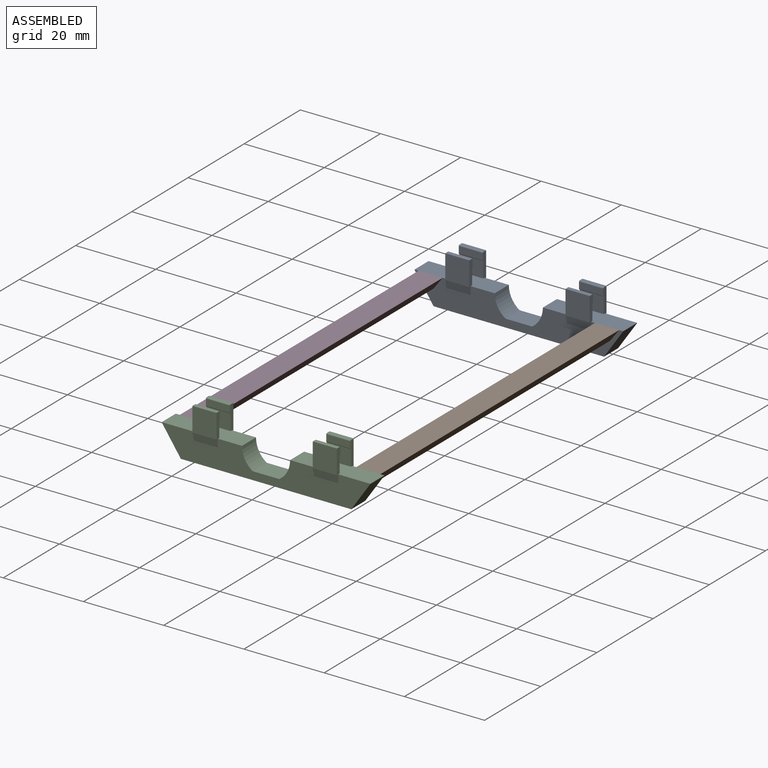
[diagram: assembled view]
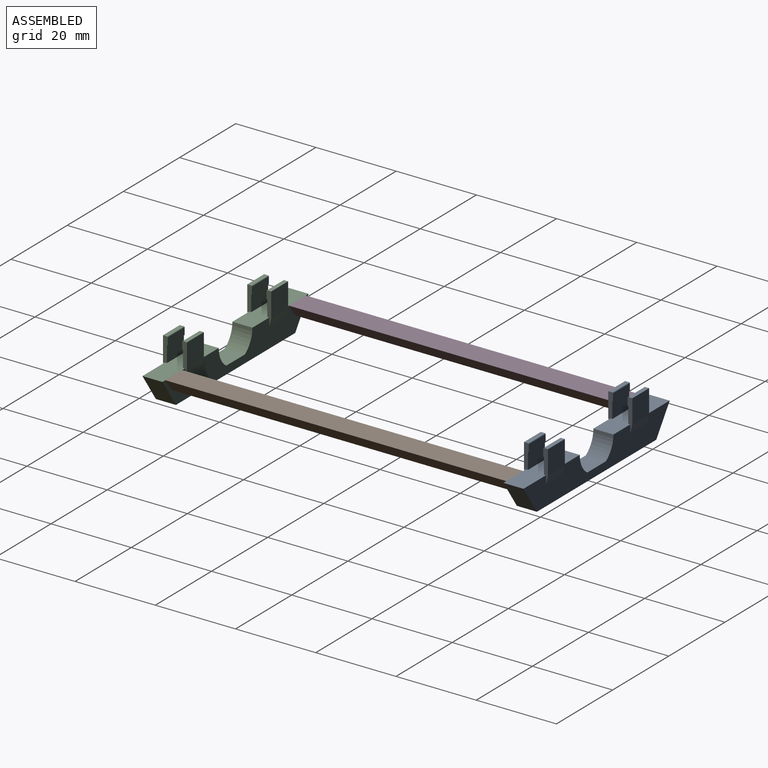
[diagram: assembled view, second angle]
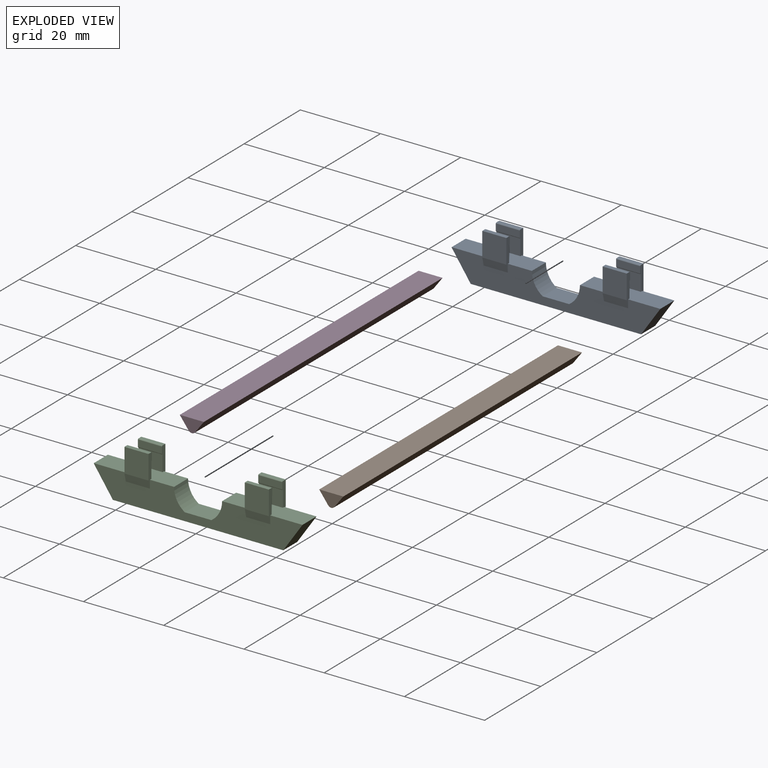
[diagram: exploded view]
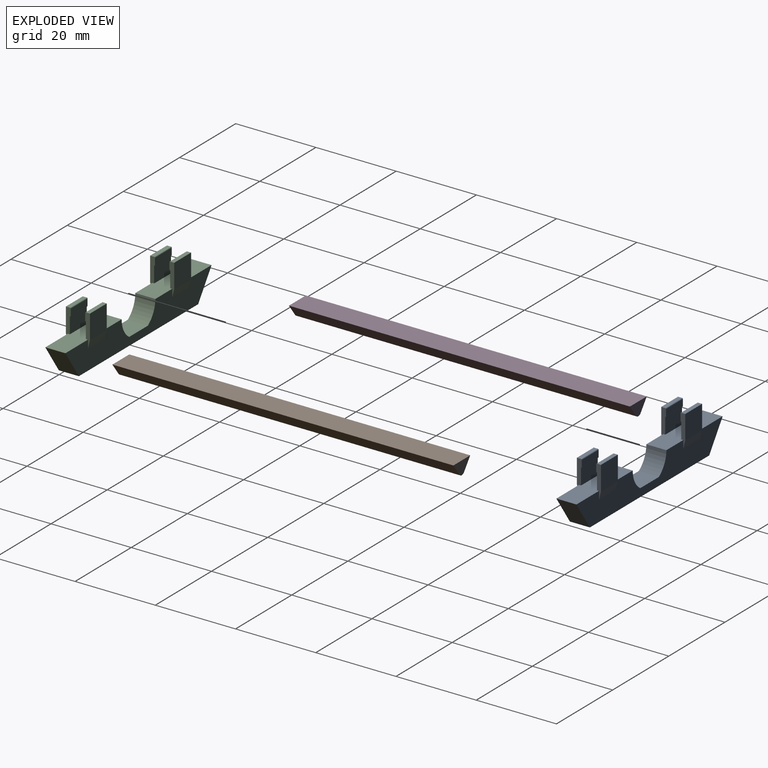
[diagram: exploded view, second angle]
ASSEMBLY  parts=4 mates=4
PART A: 48 faces, bbox 52x6x13 mm
  f0: plane 42.47x5mm, normal (0,0,-1), area 212.4mm2, adj f8,f9,f42,f43
  f1: cylinder r=26mm len=5mm, axis (0,1,0), area 0.2mm2, adj f2,f8,f9,f42
  f2: plane 20x5mm, normal (0,0,1), area 94mm2, adj f1,f3,f8,f9,f14,f15,f16,f22
  f3: cylinder r=6mm len=5mm, axis (0,1,0), area 29.6mm2, adj f2,f4,f8,f9
  f4: plane 6.63x5mm, normal (0,0,1), area 33.2mm2, adj f3,f5,f8,f9
  f5: cylinder r=6mm len=5mm, axis (0,1,0), area 29.6mm2, adj f4,f6,f8,f9
  f6: plane 20x5mm, normal (0,0,1), area 94mm2, adj f5,f7,f8,f9,f10,f11,f12,f18
  f7: cylinder r=26mm len=5mm, axis (0,1,0), area 0.2mm2, adj f6,f8,f9,f43
  f8: plane 52x7mm, normal (0,-1,0), area 254.8mm2, adj f0,f1,f2,f3,f4,f5,f6,f7
  f9: plane 52x7mm, normal (0,1,0), area 254.8mm2, adj f0,f1,f2,f3,f4,f5,f6,f7
  f10: plane 8x1.2mm, normal (-1,0,0), area 6.9mm2, adj f6,f9,f12,f13,f26,f27,f40,f41
  f11: plane 8x1.2mm, normal (1,0,0), area 6.9mm2, adj f6,f9,f12,f13,f26,f27,f40,f41
  f12: plane 6x4mm, normal (0,-1,0), area 24mm2, adj f6,f10,f11,f40
  f13: plane 6x6mm, normal (0,1,0), area 36mm2, adj f10,f11,f26,f46
  f14: plane 8x1.2mm, normal (-1,0,0), area 6.9mm2, adj f2,f9,f16,f17,f28,f29,f38,f39
  f15: plane 8x1.2mm, normal (1,0,0), area 6.9mm2, adj f2,f9,f16,f17,f28,f29,f38,f39
  f16: plane 6x4mm, normal (0,-1,0), area 24mm2, adj f2,f14,f15,f38
  f17: plane 6x6mm, normal (0,1,0), area 36mm2, adj f14,f15,f28,f47
  f18: plane 8x1.2mm, normal (-1,0,0), area 6.9mm2, adj f6,f8,f20,f21,f30,f31,f36,f37
  f19: plane 8x1.2mm, normal (1,0,0), area 6.9mm2, adj f6,f8,f20,f21,f30,f31,f36,f37
  f20: plane 6x6mm, normal (0,-1,0), area 36mm2, adj f18,f19,f30,f45
  f21: plane 6x4mm, normal (0,1,0), area 24mm2, adj f6,f18,f19,f36
  f22: plane 8x1.2mm, normal (-1,0,0), area 6.9mm2, adj f2,f8,f24,f25,f32,f33,f34,f35
  f23: plane 8x1.2mm, normal (1,0,0), area 6.9mm2, adj f2,f8,f24,f25,f32,f33,f34,f35
  f24: plane 6x6mm, normal (0,-1,0), area 36mm2, adj f22,f23,f32,f44
  f25: plane 6x4mm, normal (0,1,0), area 24mm2, adj f2,f22,f23,f34
  f26: plane 6x1mm, normal (0,0,1), area 6mm2, adj f10,f11,f13,f41
  f27: plane 6x1.6mm, normal (0,-1,0), area 9.6mm2, adj f10,f11,f40,f41
  f28: plane 6x1mm, normal (0,0,1), area 6mm2, adj f14,f15,f17,f39
  f29: plane 6x1.6mm, normal (0,-1,0), area 9.6mm2, adj f14,f15,f38,f39
  f30: plane 6x1mm, normal (0,0,1), area 6mm2, adj f18,f19,f20,f37
  f31: plane 6x1.6mm, normal (0,1,0), area 9.6mm2, adj f18,f19,f36,f37
  f32: plane 6x1mm, normal (0,0,1), area 6mm2, adj f22,f23,f24,f35
  f33: plane 6x1.6mm, normal (0,1,0), area 9.6mm2, adj f22,f23,f34,f35
  f34: cylinder r=0.2mm len=6mm, axis (1,0,0), area 1.9mm2, adj f22,f23,f25,f33
  f35: cylinder r=0.2mm len=6mm, axis (-1,0,0), area 1.9mm2, adj f22,f23,f32,f33
  f36: cylinder r=0.2mm len=6mm, axis (1,0,0), area 1.9mm2, adj f18,f19,f21,f31
  f37: cylinder r=0.2mm len=6mm, axis (-1,0,0), area 1.9mm2, adj f18,f19,f30,f31
  f38: cylinder r=0.2mm len=6mm, axis (-1,0,0), area 1.9mm2, adj f14,f15,f16,f29
  f39: cylinder r=0.2mm len=6mm, axis (1,0,0), area 1.9mm2, adj f14,f15,f28,f29
  f40: cylinder r=0.2mm len=6mm, axis (-1,0,0), area 1.9mm2, adj f10,f11,f12,f27
  f41: cylinder r=0.2mm len=6mm, axis (1,0,0), area 1.9mm2, adj f10,f11,f26,f27
  f42: plane 6.96x5mm, normal (0.83,0,-0.57), area 42.2mm2, adj f0,f1,f8,f9
  f43: plane 6.96x5mm, normal (-0.83,0,-0.57), area 42.2mm2, adj f0,f7,f8,f9
  f44: plane 6x2mm, normal (0,-0.97,-0.24), area 12.4mm2, adj f8,f22,f23,f24
  f45: plane 6x2mm, normal (0,-0.97,-0.24), area 12.4mm2, adj f8,f18,f19,f20
  f46: plane 6x2mm, normal (0,0.97,-0.24), area 12.4mm2, adj f9,f10,f11,f13
  f47: plane 6x2mm, normal (0,0.97,-0.24), area 12.4mm2, adj f9,f14,f15,f17
PART B: 6 faces, bbox 6x85x3.3 mm
  f0: plane 85x6mm, normal (0,0,1), area 510mm2, adj f1,f3,f4,f5
  f1: plane 85x2.93mm, normal (-0.8,0,-0.6), area 311.7mm2, adj f0,f2,f4,f5
  f2: cylinder r=1mm len=85mm, axis (0,1,0), area 157.6mm2, adj f1,f3,f4,f5
  f3: plane 85x2.93mm, normal (0.8,0,-0.6), area 311.7mm2, adj f0,f2,f4,f5
  f4: plane 6x3.33mm, normal (0,-1,0), area 11.6mm2, adj f0,f1,f2,f3
  f5: plane 6x3.33mm, normal (0,1,0), area 11.6mm2, adj f0,f1,f2,f3
PART C: same geometry as A
PART D: same geometry as B
PLACE A at identity fixed
PLACE B t=(7,10,0)mm
PLACE C t=(0,-90,0)mm
PLACE D t=(-37,10,0)mm
MATE fastened B.f5 <-> A.f8  axis (0,1,0) through (22,-5,0)mm
MATE fastened B.f4 <-> C.f9  axis (0,-1,0) through (22,-90,0)mm
MATE fastened D.f5 <-> A.f8  axis (0,1,0) through (-22,-5,0)mm
MATE fastened D.f4 <-> C.f9  axis (0,-1,0) through (-22,-90,0)mm
